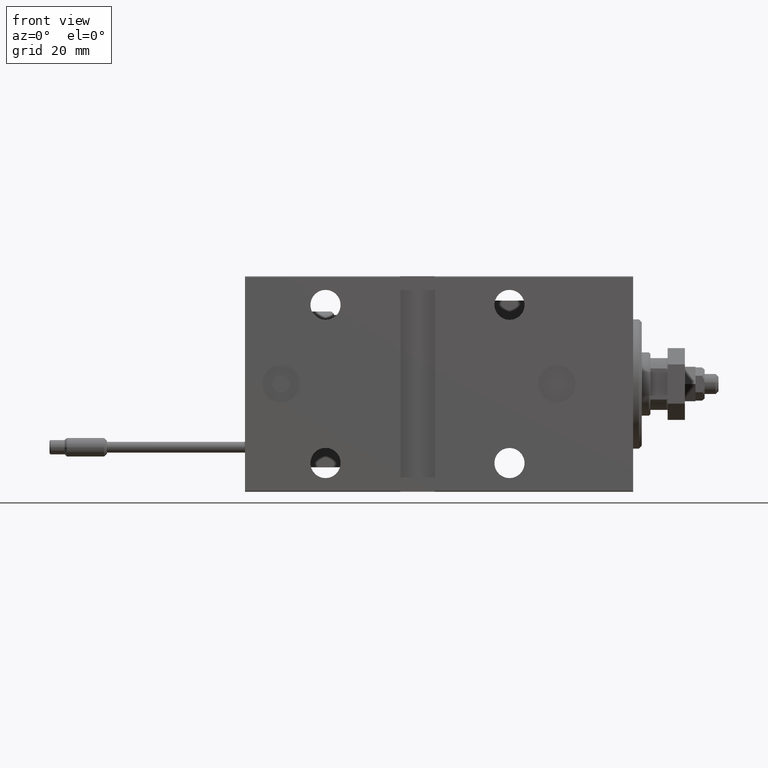
[diagram: clean part render]
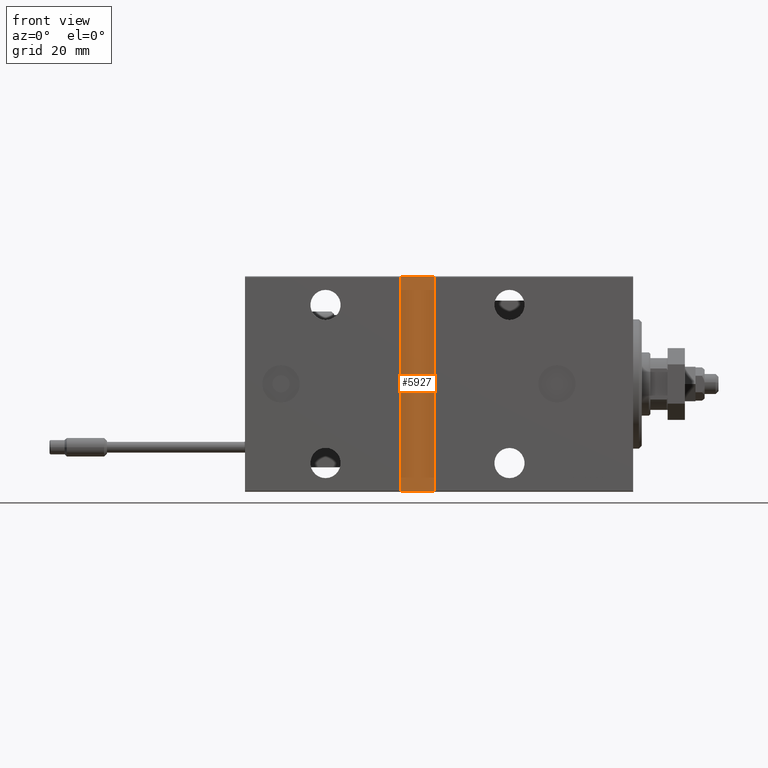
[diagram: same view with one face highlighted and labeled with its STEP entity id]
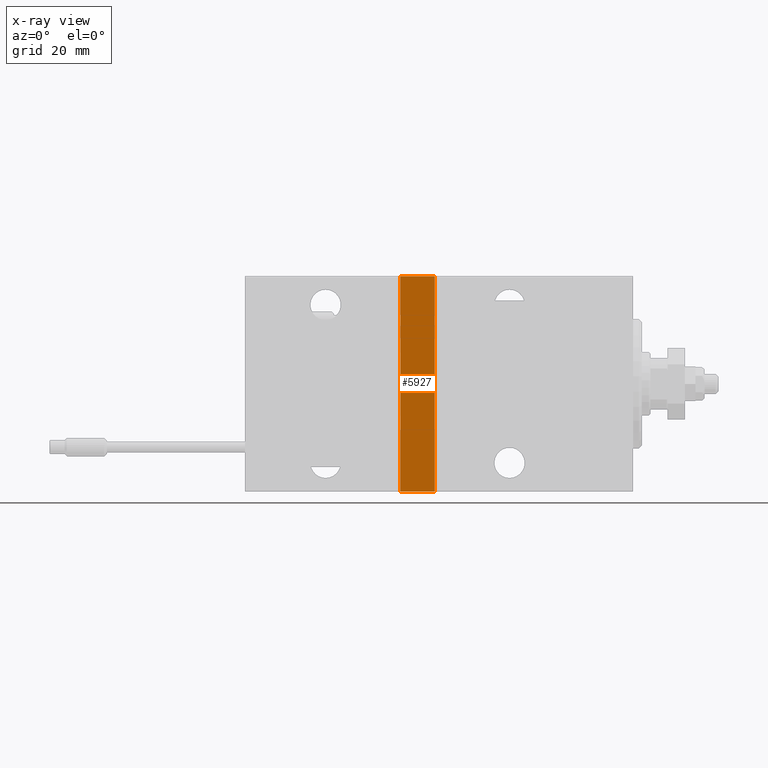
[diagram: x-ray of the same camera — body ghosted, the highlighted face saturated]
A machine part, front view. The second image highlights one B-rep face of the part: STEP entity #5927.
The next image is the same camera in x-ray: the body ghosted, the highlighted face saturated — about 0% of this face is hidden behind the body in this view.
In plain terms, the highlighted planar face has unit normal (-0, 1, -0).
Its self-contained STEP definition (entity closure, byte-faithful):
#759 = CARTESIAN_POINT ( 'NONE',  ( 81.00000000000000000, 24.49999999999999645, 37.50000000000000711 ) ) ;
#3562 = ORIENTED_EDGE ( 'NONE', *, *, #9548, .T. ) ;
#5040 = EDGE_LOOP ( 'NONE', ( #10950, #14220, #3562, #41112 ) ) ;
#5394 = CARTESIAN_POINT ( 'NONE',  ( 81.00000000000000000, 24.49999999999999645, 37.50000000000000711 ) ) ;
#5801 = FACE_OUTER_BOUND ( 'NONE', #5040, .T. ) ;
#5927 = ADVANCED_FACE ( 'NONE', ( #5801 ), #24775, .F. ) ;
#8007 = VECTOR ( 'NONE', #16951, 1000.000000000000000 ) ;
#9548 = EDGE_CURVE ( 'NONE', #40315, #21716, #25291, .T. ) ;
#9606 = DIRECTION ( 'NONE',  ( 0.000000000000000000, -1.000000000000000000, -9.251858538542959255E-17 ) ) ;
#10950 = ORIENTED_EDGE ( 'NONE', *, *, #28032, .T. ) ;
#11389 = CARTESIAN_POINT ( 'NONE',  ( 81.00000000000001421, 24.50000000000000355, -37.50000000000000711 ) ) ;
#12424 = VECTOR ( 'NONE', #36797, 1000.000000000000000 ) ;
#13133 = VECTOR ( 'NONE', #47848, 1000.000000000000000 ) ;
#14130 = DIRECTION ( 'NONE',  ( 0.000000000000000000, 9.251858538542959255E-17, -1.000000000000000000 ) ) ;
#14220 = ORIENTED_EDGE ( 'NONE', *, *, #45669, .T. ) ;
#15447 = LINE ( 'NONE', #759, #8007 ) ;
#16951 = DIRECTION ( 'NONE',  ( 1.000000000000000000, -0.000000000000000000, -0.000000000000000000 ) ) ;
#17047 = LINE ( 'NONE', #32501, #12424 ) ;
#21716 = VERTEX_POINT ( 'NONE', #11389 ) ;
#22773 = DIRECTION ( 'NONE',  ( -1.000000000000000000, 0.000000000000000000, 0.000000000000000000 ) ) ;
#23787 = CARTESIAN_POINT ( 'NONE',  ( 69.00000000000000000, 24.49999999999999645, 37.50000000000000711 ) ) ;
#24775 = PLANE ( 'NONE',  #46177 ) ;
#25291 = LINE ( 'NONE', #44311, #13133 ) ;
#25963 = EDGE_CURVE ( 'NONE', #21716, #48657, #34447, .T. ) ;
#27080 = CARTESIAN_POINT ( 'NONE',  ( 81.00000000000001421, 24.50000000000000355, -37.50000000000009237 ) ) ;
#28032 = EDGE_CURVE ( 'NONE', #48657, #48187, #17047, .T. ) ;
#28824 = CARTESIAN_POINT ( 'NONE',  ( 0.000000000000000000, 24.50000000000000000, 2.165775976068010180E-15 ) ) ;
#32501 = CARTESIAN_POINT ( 'NONE',  ( 69.00000000000000000, 24.50000000000000355, -37.50000000000009237 ) ) ;
#34148 = VECTOR ( 'NONE', #22773, 1000.000000000000000 ) ;
#34447 = LINE ( 'NONE', #27080, #34148 ) ;
#36797 = DIRECTION ( 'NONE',  ( 0.000000000000000000, -9.251858538542959255E-17, 1.000000000000000000 ) ) ;
#40315 = VERTEX_POINT ( 'NONE', #5394 ) ;
#41112 = ORIENTED_EDGE ( 'NONE', *, *, #25963, .T. ) ;
#44311 = CARTESIAN_POINT ( 'NONE',  ( 81.00000000000001421, 24.50000000000000355, -37.50000000000009237 ) ) ;
#45669 = EDGE_CURVE ( 'NONE', #48187, #40315, #15447, .T. ) ;
#46177 = AXIS2_PLACEMENT_3D ( 'NONE', #28824, #9606, #14130 ) ;
#47848 = DIRECTION ( 'NONE',  ( 1.850371707708591851E-16, 9.251858538542959255E-17, -1.000000000000000000 ) ) ;
#48187 = VERTEX_POINT ( 'NONE', #23787 ) ;
#48657 = VERTEX_POINT ( 'NONE', #49174 ) ;
#49174 = CARTESIAN_POINT ( 'NONE',  ( 69.00000000000000000, 24.50000000000000355, -37.50000000000009237 ) ) ;